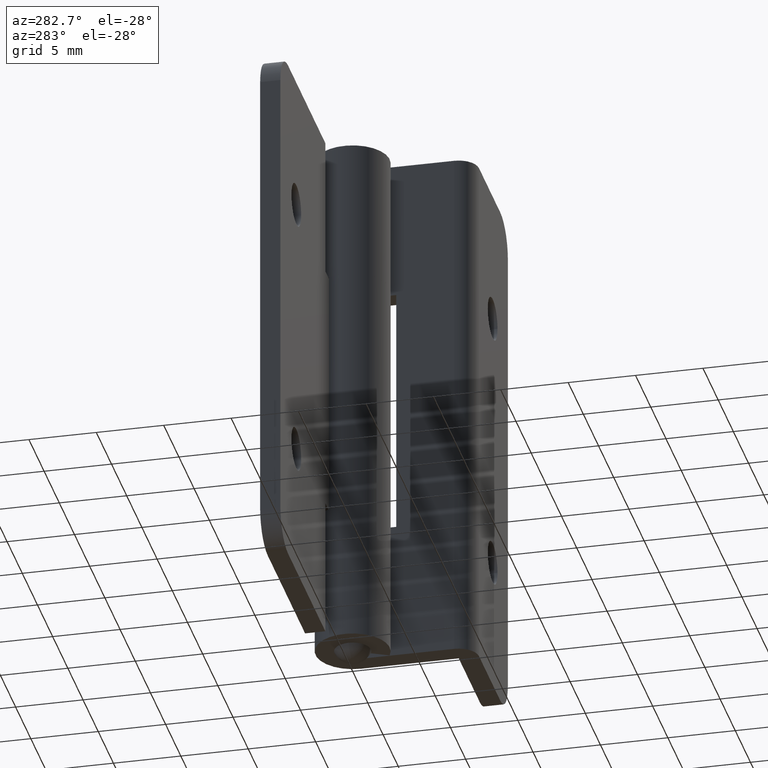
[diagram: clean part render]
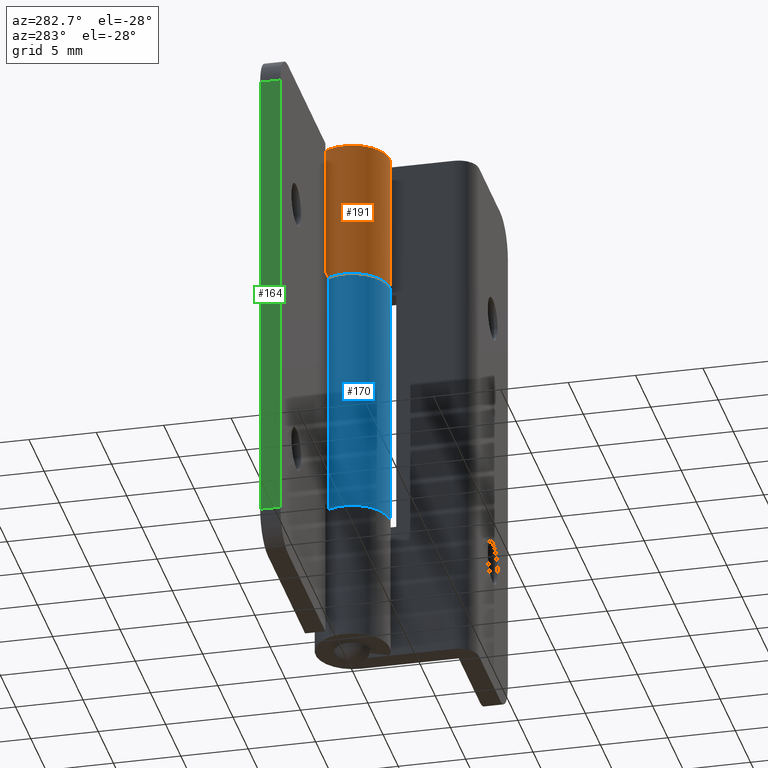
[diagram: same view with three faces highlighted in distinct colors, each labeled with its STEP entity id]
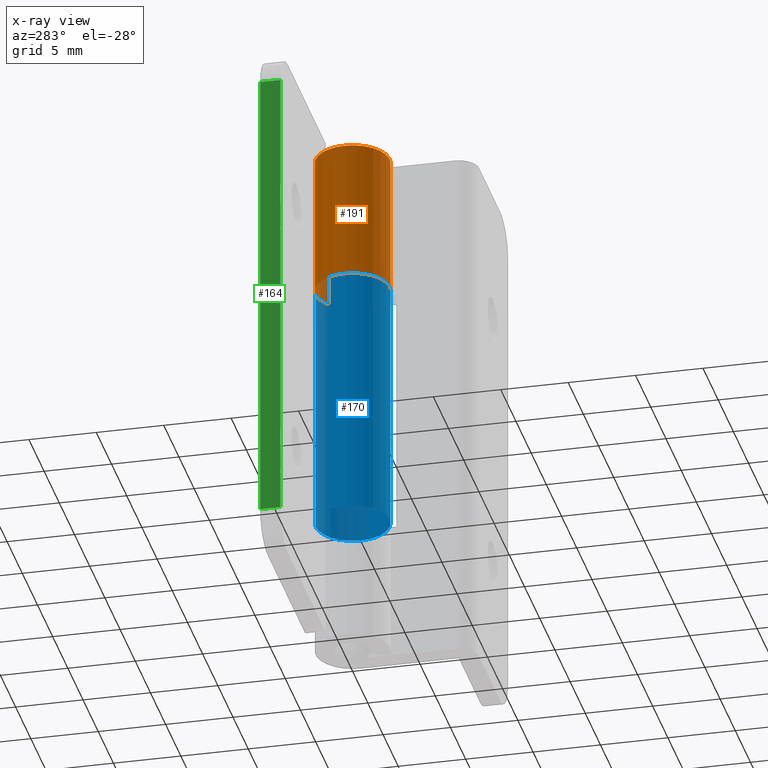
[diagram: x-ray of the same camera — body ghosted, the three highlighted faces saturated]
A machine part, auxiliary view with three faces highlighted in distinct colors.
The next image is the same camera in x-ray (body ghosted, the three faces saturated) — at least one of them is partly hidden behind the body in this view.
Their STEP definitions:

[orange] entity #191 — the highlighted cylindrical surface (partial cylindrical patch) has radius 2.75 mm, axis along (0, 0, -1).
#191=ADVANCED_FACE('',(#629),#628,.T.);
#628=CYLINDRICAL_SURFACE('',#921,2.75000000000E+00);
#629=FACE_OUTER_BOUND('',#922,.T.);
#918=CARTESIAN_POINT('',(0.00000000000E+00,9.80000000000E+02,0.00000000000E+00));
#919=DIRECTION('',(-0.00000000000E+00,1.00000000000E+00,0.00000000000E+00));
#920=DIRECTION('',(8.52640164354E-01,0.00000000000E+00,-5.22498564716E-01));
#921=AXIS2_PLACEMENT_3D('',#918,#919,#920);
#922=EDGE_LOOP('',(#1175,#1176,#1177,#1178));
#1175=ORIENTED_EDGE('',*,*,#1277,.F.);
#1176=ORIENTED_EDGE('',*,*,#1311,.T.);
#1177=ORIENTED_EDGE('',*,*,#1322,.T.);
#1178=ORIENTED_EDGE('',*,*,#1298,.F.);
#1277=EDGE_CURVE('',#1820,#1827,#1828,.T.);
#1298=EDGE_CURVE('',#1827,#1967,#1968,.T.);
#1311=EDGE_CURVE('',#1820,#2049,#2056,.T.);
#1322=EDGE_CURVE('',#2049,#1967,#2126,.T.);
#1820=VERTEX_POINT('',#2457);
#1827=VERTEX_POINT('',#2461);
#1828=LINE('',#2462,#2463);
#1967=VERTEX_POINT('',#2546);
#1968=CIRCLE('',#2550,2.75000000000E+00);
#2049=VERTEX_POINT('',#2597);
#2056=CIRCLE('',#2604,2.75000000000E+00);
#2126=LINE('',#2643,#2644);
#2457=CARTESIAN_POINT('',(2.75000000000E+00,-9.50000000000E+00,1.13686837722E-13));
#2461=CARTESIAN_POINT('',(2.75000000000E+00,-2.00000000000E+01,1.13686837722E-13));
#2462=CARTESIAN_POINT('',(2.75000000000E+00,-9.50000000000E+00,1.13686837722E-13));
#2463=VECTOR('',#2464,1.05000000000E+01);
#2464=DIRECTION('',(0.00000000000E+00,-1.00000000000E+00,0.00000000000E+00));
#2546=CARTESIAN_POINT('',(1.20000000000E+00,-2.00000000000E+01,-2.47436860633E+00));
#2547=CARTESIAN_POINT('',(0.00000000000E+00,-2.00000000000E+01,0.00000000000E+00));
#2548=DIRECTION('',(0.00000000000E+00,-1.00000000000E+00,-0.00000000000E+00));
#2549=DIRECTION('',(4.36363636364E-01,0.00000000000E+00,-8.99770402302E-01));
#2550=AXIS2_PLACEMENT_3D('',#2547,#2548,#2549);
#2597=CARTESIAN_POINT('',(1.20000000000E+00,-9.50000000000E+00,-2.47436860633E+00));
#2601=CARTESIAN_POINT('',(0.00000000000E+00,-9.50000000000E+00,0.00000000000E+00));
#2602=DIRECTION('',(0.00000000000E+00,-1.00000000000E+00,-0.00000000000E+00));
#2603=DIRECTION('',(4.36363636364E-01,0.00000000000E+00,-8.99770402302E-01));
#2604=AXIS2_PLACEMENT_3D('',#2601,#2602,#2603);
#2643=CARTESIAN_POINT('',(1.20000000000E+00,-9.50000000000E+00,-2.47436860633E+00));
#2644=VECTOR('',#2645,1.05000000000E+01);
#2645=DIRECTION('',(0.00000000000E+00,-1.00000000000E+00,0.00000000000E+00));

[blue] entity #170 — the highlighted cylindrical surface (partial cylindrical patch) has radius 2.75 mm, axis along (0, 0, -1).
#170=ADVANCED_FACE('',(#415),#414,.T.);
#414=CYLINDRICAL_SURFACE('',#812,2.74999800000E+00);
#415=FACE_OUTER_BOUND('',#813,.T.);
#809=CARTESIAN_POINT('',(0.00000000000E+00,0.00000000000E+00,9.89500000000E+02));
#810=DIRECTION('',(0.00000000000E+00,-0.00000000000E+00,1.00000000000E+00));
#811=DIRECTION('',(-5.37299608347E-01,-8.43391445813E-01,0.00000000000E+00));
#812=AXIS2_PLACEMENT_3D('',#809,#810,#811);
#813=EDGE_LOOP('',(#1057,#1058,#1059,#1060));
#1057=ORIENTED_EDGE('',*,*,#1253,.F.);
#1058=ORIENTED_EDGE('',*,*,#1260,.F.);
#1059=ORIENTED_EDGE('',*,*,#1256,.T.);
#1060=ORIENTED_EDGE('',*,*,#1241,.T.);
#1241=EDGE_CURVE('',#1587,#1580,#1588,.T.);
#1253=EDGE_CURVE('',#1661,#1580,#1668,.T.);
#1256=EDGE_CURVE('',#1686,#1587,#1687,.T.);
#1260=EDGE_CURVE('',#1686,#1661,#1712,.T.);
#1580=VERTEX_POINT('',#2317);
#1587=VERTEX_POINT('',#2321);
#1588=LINE('',#2322,#2323);
#1661=VERTEX_POINT('',#2367);
#1668=CIRCLE('',#2374,2.74999800000E+00);
#1686=VERTEX_POINT('',#2381);
#1687=CIRCLE('',#2385,2.74999800000E+00);
#1712=LINE('',#2397,#2398);
#2317=CARTESIAN_POINT('',(3.49665698534E-23,-2.74999800000E+00,0.00000000000E+00));
#2321=CARTESIAN_POINT('',(0.00000000000E+00,-2.74999800000E+00,1.90000000000E+01));
#2322=CARTESIAN_POINT('',(0.00000000000E+00,-2.74999800000E+00,1.90000000000E+01));
#2323=VECTOR('',#2324,1.90000000000E+01);
#2324=DIRECTION('',(0.00000000000E+00,0.00000000000E+00,-1.00000000000E+00));
#2367=CARTESIAN_POINT('',(-2.47436638354E+00,-1.20000000000E+00,8.88178418682E-12));
#2371=CARTESIAN_POINT('',(0.00000000000E+00,0.00000000000E+00,0.00000000000E+00));
#2372=DIRECTION('',(-3.56582747167E-12,-8.96831017168E-44,-1.00000000000E+00));
#2373=DIRECTION('',(1.83690953073E-16,-1.00000000000E+00,-6.55010246766E-28));
#2374=AXIS2_PLACEMENT_3D('',#2371,#2372,#2373);
#2381=CARTESIAN_POINT('',(-2.47436638354E+00,-1.20000000000E+00,1.90000000000E+01));
#2382=CARTESIAN_POINT('',(0.00000000000E+00,0.00000000000E+00,1.90000000000E+01));
#2383=DIRECTION('',(0.00000000000E+00,0.00000000000E+00,-1.00000000000E+00));
#2384=DIRECTION('',(1.83690953073E-16,-1.00000000000E+00,-0.00000000000E+00));
#2385=AXIS2_PLACEMENT_3D('',#2382,#2383,#2384);
#2397=CARTESIAN_POINT('',(-2.47436638354E+00,-1.20000000000E+00,1.90000000000E+01));
#2398=VECTOR('',#2399,1.90000000000E+01);
#2399=DIRECTION('',(0.00000000000E+00,0.00000000000E+00,-1.00000000000E+00));

[green] entity #164 — the highlighted planar face has unit normal (1, 0, 0).
#164=ADVANCED_FACE('',(#355),#354,.F.);
#354=PLANE('',#782);
#355=FACE_OUTER_BOUND('',#783,.T.);
#779=CARTESIAN_POINT('',(-1.82500000000E+01,-2.89999780000E+00,3.05000000000E+01));
#780=DIRECTION('',(1.00000000000E+00,0.00000000000E+00,-0.00000000000E+00));
#781=DIRECTION('',(-0.00000000000E+00,0.00000000000E+00,-1.00000000000E+00));
#782=AXIS2_PLACEMENT_3D('',#779,#780,#781);
#783=EDGE_LOOP('',(#1031,#1032,#1033,#1034));
#1031=ORIENTED_EDGE('',*,*,#1226,.T.);
#1032=ORIENTED_EDGE('',*,*,#1224,.T.);
#1033=ORIENTED_EDGE('',*,*,#1237,.F.);
#1034=ORIENTED_EDGE('',*,*,#1218,.T.);
#1218=EDGE_CURVE('',#1430,#1422,#1431,.T.);
#1224=EDGE_CURVE('',#1451,#1465,#1472,.T.);
#1226=EDGE_CURVE('',#1422,#1451,#1485,.T.);
#1237=EDGE_CURVE('',#1430,#1465,#1560,.T.);
#1422=VERTEX_POINT('',#2220);
#1430=VERTEX_POINT('',#2226);
#1431=LINE('',#2227,#2228);
#1451=VERTEX_POINT('',#2239);
#1465=VERTEX_POINT('',#2248);
#1472=LINE('',#2253,#2254);
#1485=LINE('',#2260,#2261);
#1560=LINE('',#2306,#2307);
#2220=CARTESIAN_POINT('',(-1.82500000000E+01,-1.25000000000E+00,2.70000000000E+01));
#2226=CARTESIAN_POINT('',(-1.82500000000E+01,-2.74999800000E+00,2.70000000000E+01));
#2227=CARTESIAN_POINT('',(-1.82500000000E+01,-2.74999800000E+00,2.70000000000E+01));
#2228=VECTOR('',#2229,1.49999800000E+00);
#2229=DIRECTION('',(0.00000000000E+00,1.00000000000E+00,0.00000000000E+00));
#2239=CARTESIAN_POINT('',(-1.82500000000E+01,-1.25000000000E+00,-7.99999999997E+00));
#2248=CARTESIAN_POINT('',(-1.82500000000E+01,-2.74999800000E+00,-7.99999999997E+00));
#2253=CARTESIAN_POINT('',(-1.82500000000E+01,-1.25000000000E+00,-7.99999999997E+00));
#2254=VECTOR('',#2255,1.49999800000E+00);
#2255=DIRECTION('',(0.00000000000E+00,-1.00000000000E+00,0.00000000000E+00));
#2260=CARTESIAN_POINT('',(-1.82500000000E+01,-1.25000000000E+00,2.70000000000E+01));
#2261=VECTOR('',#2262,3.50000000000E+01);
#2262=DIRECTION('',(0.00000000000E+00,0.00000000000E+00,-1.00000000000E+00));
#2306=CARTESIAN_POINT('',(-1.82500000000E+01,-2.74999800000E+00,2.70000000000E+01));
#2307=VECTOR('',#2308,3.50000000000E+01);
#2308=DIRECTION('',(0.00000000000E+00,0.00000000000E+00,-1.00000000000E+00));